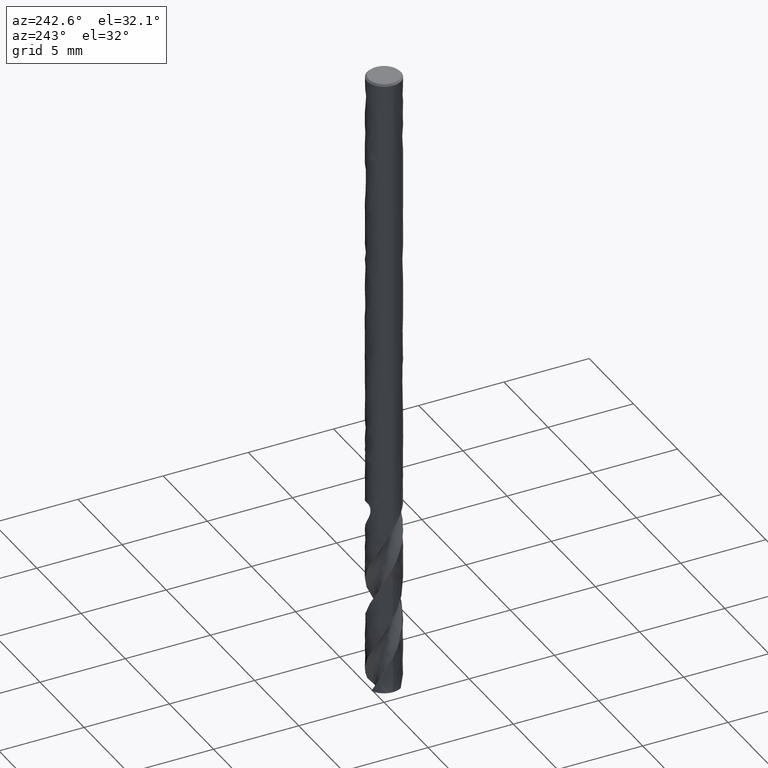
[diagram: clean part render]
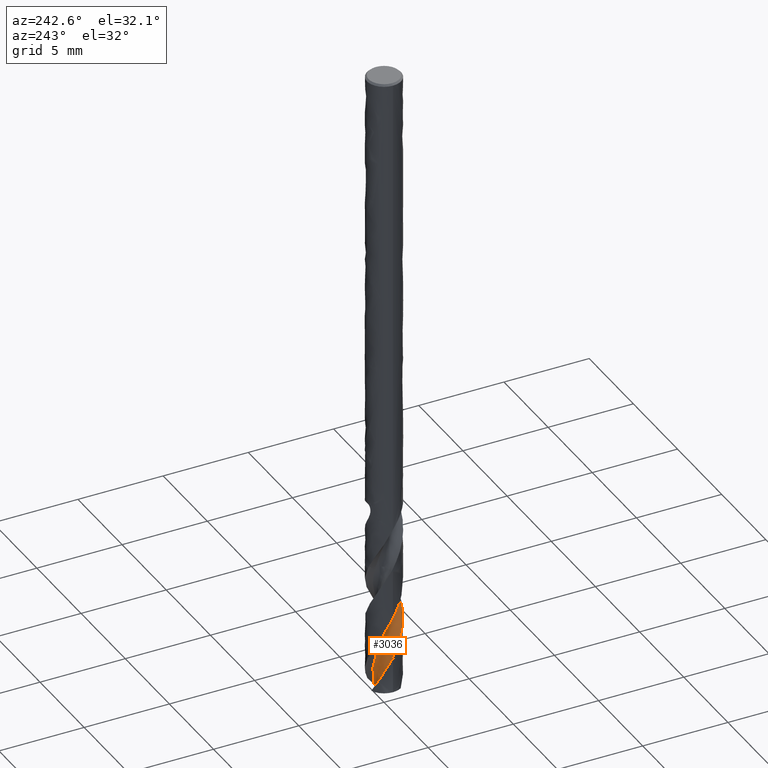
[diagram: same view with one face highlighted and labeled with its STEP entity id]
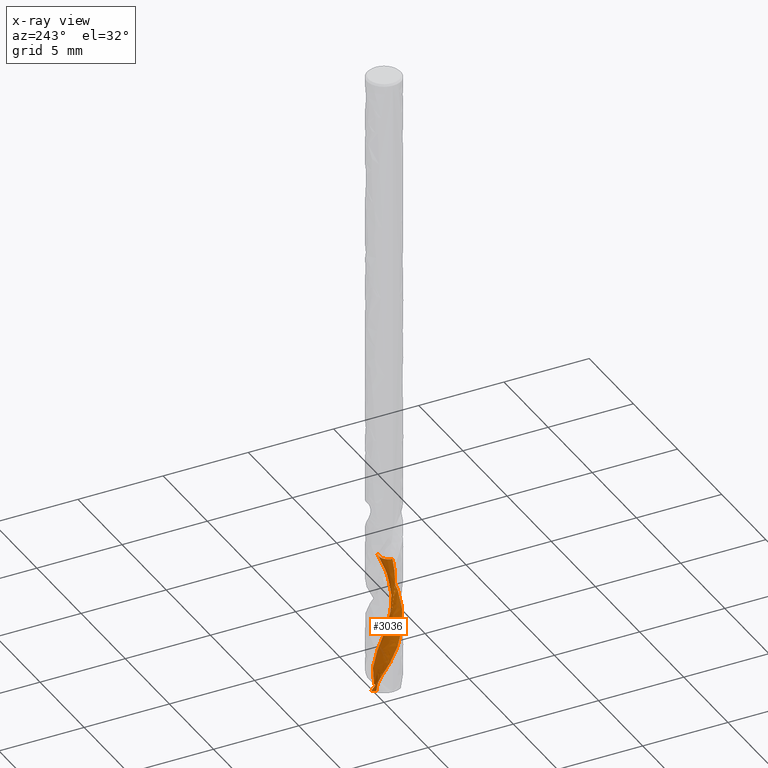
[diagram: x-ray of the same camera — body ghosted, the highlighted face saturated]
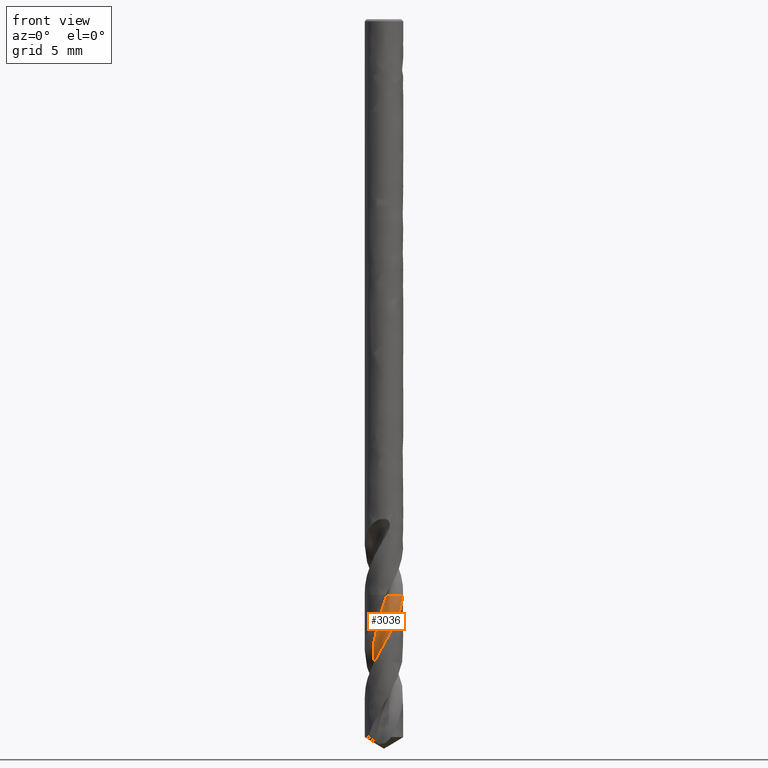
[diagram: same view with one face highlighted and labeled with its STEP entity id]
A machine part, auxiliary view. The second image highlights one B-rep face of the part: STEP entity #3036.
The next image is the same camera in x-ray: the body ghosted, the highlighted face saturated — about 0% of this face is hidden behind the body in this view.
A second angle (front view) of the same face is appended — the face is thin or edge-on in the first view.
In plain terms, the highlighted face is a freeform B-spline surface patch.
Its self-contained STEP definition (entity closure, byte-faithful):
#1668 = VERTEX_POINT('', #1669);
#1669 = CARTESIAN_POINT('', (0.135998718460345, -0.575146931831075, -30.));
#1675 = EDGE_CURVE('', #1668, #1676, #1678, .T.);
#1676 = VERTEX_POINT('', #1677);
#1677 = CARTESIAN_POINT('', (0.987539177526254, -0.109805153630184, -30.));
#1678 = B_SPLINE_CURVE_WITH_KNOTS('', 3, (#1679, #1680, #1681, #1682, #1683, #1684, #1685, #1686, #1687, #1688, #1689, #1690, #1691, #1692, #1693, #1694, #1695, #1696, #1697, #1698, #1699, #1700, #1701, #1702, #1703, #1704, #1705, #1706, #1707, #1708, #1709, #1710, #1711, #1712, #1713, #1714, #1715, #1716, #1717, #1718, #1719, #1720, #1721, #1722, #1723, #1724), .UNSPECIFIED., .F., .U., (4, 3, 3, 3, 3, 3, 3, 3, 3, 3, 3, 3, 3, 3, 3, 4), (0., 0.0883804650688275, 0.176503198818123, 0.264378113281307, 0.35201191791785, 0.439408462193498, 0.526568933330127, 0.565361066972095, 0.576896466371133, 0.66525077227098, 0.75334848854044, 0.841199188792323, 0.928809285519201, 1.01618235689132, 1.10331933151318, 1.13618845493787), .UNSPECIFIED.);
#1679 = CARTESIAN_POINT('', (0.135998718460344, -0.575146931831076, -30.));
#1680 = CARTESIAN_POINT('', (0.139254349698433, -0.545867218731092, -30.));
#1681 = CARTESIAN_POINT('', (0.144715616505441, -0.516750603756434, -30.));
#1682 = CARTESIAN_POINT('', (0.152291705077035, -0.488281258559693, -30.));
#1683 = CARTESIAN_POINT('', (0.159845700584251, -0.459894934445701, -30.));
#1684 = CARTESIAN_POINT('', (0.169543820194594, -0.431995440178764, -30.));
#1685 = CARTESIAN_POINT('', (0.181225732032189, -0.405044017569812, -30.));
#1686 = CARTESIAN_POINT('', (0.192874791926491, -0.378168387914919, -30.));
#1687 = CARTESIAN_POINT('', (0.206560363299047, -0.352088000098238, -30.));
#1688 = CARTESIAN_POINT('', (0.222057458203465, -0.327231610270038, -30.));
#1689 = CARTESIAN_POINT('', (0.237512032419371, -0.302443421018521, -30.));
#1690 = CARTESIAN_POINT('', (0.25485248765614, -0.27873721118665, -30.));
#1691 = CARTESIAN_POINT('', (0.273795306271487, -0.256500578944559, -30.));
#1692 = CARTESIAN_POINT('', (0.292686838970405, -0.234324150312395, -30.));
#1693 = CARTESIAN_POINT('', (0.313274561352267, -0.213488941809144, -30.));
#1694 = CARTESIAN_POINT('', (0.335223675555826, -0.194333775919212, -30.));
#1695 = CARTESIAN_POINT('', (0.357113501416446, -0.175230351435963, -30.));
#1696 = CARTESIAN_POINT('', (0.380475507963778, -0.157694725951723, -30.));
#1697 = CARTESIAN_POINT('', (0.404931823254602, -0.142010531819053, -30.));
#1698 = CARTESIAN_POINT('', (0.415816489649585, -0.13503003542055, -30.));
#1699 = CARTESIAN_POINT('', (0.426935816739858, -0.128402612571464, -30.));
#1700 = CARTESIAN_POINT('', (0.438254063170917, -0.122149566095912, -30.));
#1701 = CARTESIAN_POINT('', (0.441619706687306, -0.120290132706091, -30.));
#1702 = CARTESIAN_POINT('', (0.445003617776127, -0.118463387354692, -30.));
#1703 = CARTESIAN_POINT('', (0.448404833922169, -0.116669849638752, -30.));
#1704 = CARTESIAN_POINT('', (0.474456128845162, -0.102932416324544, -30.));
#1705 = CARTESIAN_POINT('', (0.501609875649799, -0.0911107608115625, -30.));
#1706 = CARTESIAN_POINT('', (0.529414808785796, -0.0814013460748307, -30.));
#1707 = CARTESIAN_POINT('', (0.557138993649892, -0.0717201284374162, -30.));
#1708 = CARTESIAN_POINT('', (0.585663475437383, -0.064085438363584, -30.));
#1709 = CARTESIAN_POINT('', (0.614516946489502, -0.0586234232074212, -30.));
#1710 = CARTESIAN_POINT('', (0.643289515677027, -0.053176722923073, -30.));
#1711 = CARTESIAN_POINT('', (0.672547019340507, -0.0498605926607932, -30.));
#1712 = CARTESIAN_POINT('', (0.701808734156998, -0.0487295189952856, -30.));
#1713 = CARTESIAN_POINT('', (0.730990307646074, -0.0476015430889327, -30.));
#1714 = CARTESIAN_POINT('', (0.760335232974311, -0.0486404539355623, -30.));
#1715 = CARTESIAN_POINT('', (0.789363977088427, -0.0518292744229569, -30.));
#1716 = CARTESIAN_POINT('', (0.818314185181821, -0.0550094676934491, -30.));
#1717 = CARTESIAN_POINT('', (0.847106979487776, -0.0603451423137144, -30.));
#1718 = CARTESIAN_POINT('', (0.875274381596411, -0.0677495758733493, -30.));
#1719 = CARTESIAN_POINT('', (0.903365670641873, -0.0751340014067878, -30.));
#1720 = CARTESIAN_POINT('', (0.93098653181853, -0.0846158042685134, -30.));
#1721 = CARTESIAN_POINT('', (0.957690447628035, -0.0960417020946588, -30.));
#1722 = CARTESIAN_POINT('', (0.967763488475208, -0.100351689301757, -30.));
#1723 = CARTESIAN_POINT('', (0.977720726319764, -0.104943039116932, -30.));
#1724 = CARTESIAN_POINT('', (0.987539177526253, -0.109805153630183, -30.));
#2870 = EDGE_CURVE('', #2871, #1676, #2873, .T.);
#2871 = VERTEX_POINT('', #2872);
#2872 = CARTESIAN_POINT('', (-0.391746614955515, 0.920073143652666, -37.3458270186984));
#2873 = B_SPLINE_CURVE_WITH_KNOTS('', 3, (#2874, #2875, #2876, #2877, #2878, #2879, #2880, #2881, #2882, #2883, #2884, #2885, #2886, #2887, #2888, #2889, #2890, #2891, #2892, #2893, #2894, #2895, #2896, #2897, #2898, #2899, #2900, #2901, #2902, #2903, #2904, #2905, #2906, #2907, #2908, #2909, #2910, #2911, #2912, #2913, #2914, #2915, #2916, #2917), .UNSPECIFIED., .F., .U., (4, 1, 1, 1, 1, 1, 1, 1, 1, 1, 1, 1, 1, 1, 1, 1, 1, 1, 1, 1, 1, 1, 1, 1, 1, 1, 1, 1, 1, 1, 1, 1, 1, 1, 1, 1, 1, 1, 1, 1, 1, 4), (0.704172981301635, 0.741538461538462, 0.926923076923077, 1.11230769230769, 1.29769230769231, 1.48307692307692, 1.66846153846154, 1.85384615384615, 2.03923076923077, 2.22461538461538, 2.41, 2.59538461538462, 2.78076923076923, 2.96615384615385, 3.15153846153846, 3.33692307692308, 3.52230769230769, 3.70769230769231, 3.89307692307692, 4.07846153846154, 4.26384615384615, 4.44923076923077, 4.63461538461539, 4.82, 5.00538461538462, 5.19076923076923, 5.37615384615385, 5.56153846153846, 5.74692307692308, 5.93230769230769, 6.11769230769231, 6.30307692307692, 6.48846153846154, 6.67384615384615, 6.85923076923077, 7.04461538461539, 7.23, 7.41538461538461, 7.60076923076923, 7.78615384615385, 7.97153846153846, 8.05), .UNSPECIFIED.);
#2874 = CARTESIAN_POINT('', (-0.391746614955515, 0.920073143652666, -37.3458270186984));
#2875 = CARTESIAN_POINT('', (-0.398233777784543, 0.917134684708216, -37.3333718586194));
#2876 = CARTESIAN_POINT('', (-0.436711460560281, 0.899212653154365, -37.2591218267456));
#2877 = CARTESIAN_POINT('', (-0.504991460609736, 0.861997952328158, -37.1230769230769));
#2878 = CARTESIAN_POINT('', (-0.592009801918604, 0.801958142060172, -36.9376923076923));
#2879 = CARTESIAN_POINT('', (-0.672084571697255, 0.733285192718364, -36.7523076923077));
#2880 = CARTESIAN_POINT('', (-0.744375408918372, 0.656763160572846, -36.5669230769231));
#2881 = CARTESIAN_POINT('', (-0.808128558124909, 0.573256117091408, -36.3815384615385));
#2882 = CARTESIAN_POINT('', (-0.862684316426238, 0.483698833140616, -36.1961538461538));
#2883 = CARTESIAN_POINT('', (-0.907483472532038, 0.389086724373042, -36.0107692307692));
#2884 = CARTESIAN_POINT('', (-0.94207269936656, 0.290465249164279, -35.8253846153846));
#2885 = CARTESIAN_POINT('', (-0.966108847743749, 0.188918842948014, -35.64));
#2886 = CARTESIAN_POINT('', (-0.9793621058836, 0.0855595065417635, -35.4546153846154));
#2887 = CARTESIAN_POINT('', (-0.981717998790511, -0.0184848393660146, -35.2692307692308));
#2888 = CARTESIAN_POINT('', (-0.973178213134883, -0.122082117658163, -35.0838461538462));
#2889 = CARTESIAN_POINT('', (-0.95386024435929, -0.224107860308487, -34.8984615384615));
#2890 = CARTESIAN_POINT('', (-0.923995873930094, -0.323456860505063, -34.7130769230769));
#2891 = CARTESIAN_POINT('', (-0.883928495676575, -0.419054597519378, -34.5276923076923));
#2892 = CARTESIAN_POINT('', (-0.83410932096386, -0.509868323047304, -34.3423076923077));
#2893 = CARTESIAN_POINT('', (-0.77509250292814, -0.594917701337449, -34.1569230769231));
#2894 = CARTESIAN_POINT('', (-0.707529230079752, -0.673284899963766, -33.9715384615385));
#2895 = CARTESIAN_POINT('', (-0.632160849167405, -0.744124033553673, -33.7861538461538));
#2896 = CARTESIAN_POINT('', (-0.549811086216401, -0.806669869099122, -33.6007692307692));
#2897 = CARTESIAN_POINT('', (-0.461377443031276, -0.86024570859963, -33.4153846153846));
#2898 = CARTESIAN_POINT('', (-0.367821854119768, -0.904270372650943, -33.23));
#2899 = CARTESIAN_POINT('', (-0.270160695887819, -0.938264217132639, -33.0446153846154));
#2900 = CARTESIAN_POINT('', (-0.169454246017161, -0.961854124289694, -32.8592307692308));
#2901 = CARTESIAN_POINT('', (-0.0667956961176843, -0.974777419169391, -32.6738461538462));
#2902 = CARTESIAN_POINT('', (0.0367001749973833, -0.976884672484491, -32.4884615384615));
#2903 = CARTESIAN_POINT('', (0.139908556771058, -0.968141361441302, -32.3030769230769));
#2904 = CARTESIAN_POINT('', (0.241706278150834, -0.948628370809628, -32.1176923076923));
#2905 = CARTESIAN_POINT('', (0.340983480387821, -0.918541327430216, -31.9323076923077));
#2906 = CARTESIAN_POINT('', (0.436655176883931, -0.878188772362394, -31.7469230769231));
#2907 = CARTESIAN_POINT('', (0.527672586350567, -0.827989185878094, -31.5615384615385));
#2908 = CARTESIAN_POINT('', (0.613034127341724, -0.768466891410858, -31.3761538461538));
#2909 = CARTESIAN_POINT('', (0.69179596503272, -0.700246875292267, -31.1907692307692));
#2910 = CARTESIAN_POINT('', (0.76308200496986, -0.624048569500922, -31.0053846153846));
#2911 = CARTESIAN_POINT('', (0.826093233182311, -0.540678654844852, -30.82));
#2912 = CARTESIAN_POINT('', (0.880116308269156, -0.451022951065926, -30.6346153846154));
#2913 = CARTESIAN_POINT('', (0.924531315904378, -0.356037471351831, -30.4492307692308));
#2914 = CARTESIAN_POINT('', (0.958818610436685, -0.256738719851781, -30.2638461538462));
#2915 = CARTESIAN_POINT('', (0.977999368252788, -0.17390815485913, -30.1141025641026));
#2916 = CARTESIAN_POINT('', (0.985603892461636, -0.124536646695686, -30.0261538461538));
#2917 = CARTESIAN_POINT('', (0.987539177526254, -0.109805153630184, -30.));
#3036 = ADVANCED_FACE('', (#3037), #3182, .T.);
#3037 = FACE_OUTER_BOUND('', #3038, .T.);
#3038 = EDGE_LOOP('', (#3039, #3040, #3090, #3174, #3181));
#3039 = ORIENTED_EDGE('', *, *, #1675, .F.);
#3040 = ORIENTED_EDGE('', *, *, #3041, .F.);
#3041 = EDGE_CURVE('', #3042, #1668, #3044, .T.);
#3042 = VERTEX_POINT('', #3043);
#3043 = CARTESIAN_POINT('', (0.500616358629446, 0.325578410920506, -37.6411810298685));
#3044 = (
   BOUNDED_CURVE ()
   B_SPLINE_CURVE (3, (#3045, #3046, #3047, #3048, #3049, #3050, #3051, #3052, #3053, #3054, #3055, #3056, #3057, #3058, #3059, #3060, #3061, #3062, #3063, #3064, #3065, #3066, #3067, #3068, #3069, #3070, #3071, #3072, #3073, #3074, #3075, #3076, #3077, #3078, #3079, #3080, #3081, #3082, #3083, #3084, #3085, #3086, #3087, #3088, #3089), .UNSPECIFIED., .F., .U.)
   B_SPLINE_CURVE_WITH_KNOTS ((4, 1, 1, 1, 1, 1, 1, 1, 1, 1, 1, 1, 1, 1, 1, 1, 1, 1, 1, 1, 1, 1, 1, 1, 1, 1, 1, 1, 1, 1, 1, 1, 1, 1, 1, 1, 1, 1, 1, 1, 1, 1, 4), (0.408818970131542, 0.556153846153846, 0.741538461538462, 0.926923076923077, 1.11230769230769, 1.29769230769231, 1.48307692307692, 1.66846153846154, 1.85384615384615, 2.03923076923077, 2.22461538461538, 2.41, 2.59538461538462, 2.78076923076923, 2.96615384615385, 3.15153846153846, 3.33692307692308, 3.52230769230769, 3.70769230769231, 3.89307692307692, 4.07846153846154, 4.26384615384615, 4.44923076923077, 4.63461538461539, 4.82, 5.00538461538462, 5.19076923076923, 5.37615384615385, 5.56153846153846, 5.74692307692308, 5.93230769230769, 6.11769230769231, 6.30307692307692, 6.48846153846154, 6.67384615384615, 6.85923076923077, 7.04461538461539, 7.23, 7.41538461538461, 7.60076923076923, 7.78615384615385, 7.97153846153846, 8.05), .UNSPECIFIED.)
   CURVE ()
   GEOMETRIC_REPRESENTATION_ITEM ()
   RATIONAL_B_SPLINE_CURVE ((1., 1., 1., 1., 1., 1., 1., 1., 1., 1., 1., 1., 1., 1., 1., 1., 1., 1., 1., 1., 1., 1., 1., 1., 1., 1., 1., 1., 1., 1., 1., 1., 1., 1., 1., 1., 1., 1., 1., 1., 1., 1., 1., 1., 1.))
   REPRESENTATION_ITEM ('')
);
#3045 = CARTESIAN_POINT('', (0.500616358629446, 0.325578410920506, -37.6411810298685));
#3046 = CARTESIAN_POINT('', (0.491132925059949, 0.339409429150648, -37.5920694045277));
#3047 = CARTESIAN_POINT('', (0.468435837758654, 0.369717381397372, -37.481162907392));
#3048 = CARTESIAN_POINT('', (0.428879157662162, 0.41330126600467, -37.3084615384615));
#3049 = CARTESIAN_POINT('', (0.38186367919126, 0.455278652426008, -37.1230769230769));
#3050 = CARTESIAN_POINT('', (0.330827748735627, 0.492015409209991, -36.9376923076923));
#3051 = CARTESIAN_POINT('', (0.276344541339714, 0.523135985277164, -36.7523076923077));
#3052 = CARTESIAN_POINT('', (0.219021330897557, 0.548326450180634, -36.5669230769231));
#3053 = CARTESIAN_POINT('', (0.159492891984802, 0.567337390011567, -36.3815384615385));
#3054 = CARTESIAN_POINT('', (0.0984147920653913, 0.579986215793679, -36.1961538461538));
#3055 = CARTESIAN_POINT('', (0.0364564714322531, 0.586158759488736, -36.0107692307692));
#3056 = CARTESIAN_POINT('', (-0.0257057742310817, 0.585810174343285, -35.8253846153846));
#3057 = CARTESIAN_POINT('', (-0.0873958511951062, 0.57896512692662, -35.64));
#3058 = CARTESIAN_POINT('', (-0.147944892019885, 0.56571728464966, -35.4546153846154));
#3059 = CARTESIAN_POINT('', (-0.206698178851447, 0.546228106646212, -35.2692307692308));
#3060 = CARTESIAN_POINT('', (-0.263021897878858, 0.520724953155169, -35.0838461538462));
#3061 = CARTESIAN_POINT('', (-0.3163096593999, 0.489498534737449, -34.8984615384615));
#3062 = CARTESIAN_POINT('', (-0.365988720395053, 0.452899728859405, -34.7130769230769));
#3063 = CARTESIAN_POINT('', (-0.41152584961892, 0.411335797225011, -34.5276923076923));
#3064 = CARTESIAN_POINT('', (-0.452432778826426, 0.365266042774442, -34.3423076923077));
#3065 = CARTESIAN_POINT('', (-0.488271187858329, 0.315196950420604, -34.1569230769231));
#3066 = CARTESIAN_POINT('', (-0.518657175869871, 0.261676860331692, -33.9715384615385));
#3067 = CARTESIAN_POINT('', (-0.543265175959319, 0.205290226847722, -33.7861538461539));
#3068 = CARTESIAN_POINT('', (-0.561831275795157, 0.146651519908171, -33.6007692307692));
#3069 = CARTESIAN_POINT('', (-0.574155912505467, 0.086398829136412, -33.4153846153846));
#3070 = CARTESIAN_POINT('', (-0.580105916031869, 0.02518723344816, -33.23));
#3071 = CARTESIAN_POINT('', (-0.57961588131253, -0.0363179987956205, -33.0446153846154));
#3072 = CARTESIAN_POINT('', (-0.572688855992027, -0.0974483125036501, -32.8592307692308));
#3073 = CARTESIAN_POINT('', (-0.559396336806749, -0.157538803880623, -32.6738461538462));
#3074 = CARTESIAN_POINT('', (-0.539877574308656, -0.215935125846323, -32.4884615384615));
#3075 = CARTESIAN_POINT('', (-0.514338192112838, -0.272000293177167, -32.3030769230769));
#3076 = CARTESIAN_POINT('', (-0.483048133330232, -0.325121320556986, -32.1176923076923));
#3077 = CARTESIAN_POINT('', (-0.446338953221469, -0.37471562818407, -31.9323076923077));
#3078 = CARTESIAN_POINT('', (-0.404600483326638, -0.420237151634415, -31.7469230769231));
#3079 = CARTESIAN_POINT('', (-0.358276898336257, -0.461182095311042, -31.5615384615385));
#3080 = CARTESIAN_POINT('', (-0.307862222716028, -0.497094271997759, -31.3761538461538));
#3081 = CARTESIAN_POINT('', (-0.253895319543409, -0.527569974753629, -31.1907692307692));
#3082 = CARTESIAN_POINT('', (-0.196954409064854, -0.552262331621843, -31.0053846153846));
#3083 = CARTESIAN_POINT('', (-0.1376511692607, -0.570885098279597, -30.82));
#3084 = CARTESIAN_POINT('', (-0.0766244745397302, -0.583215849054275, -30.6346153846154));
#3085 = CARTESIAN_POINT('', (-0.0145338338796656, -0.589098531636115, -30.4492307692308));
#3086 = CARTESIAN_POINT('', (0.0479474124949134, -0.588445359013175, -30.2638461538462));
#3087 = CARTESIAN_POINT('', (0.0981824328597528, -0.582623654983773, -30.1141025641026));
#3088 = CARTESIAN_POINT('', (0.127359579452582, -0.577009149491511, -30.0261538461538));
#3089 = CARTESIAN_POINT('', (0.135998718460345, -0.575146931831075, -30.));
#3090 = ORIENTED_EDGE('', *, *, #3091, .T.);
#3091 = EDGE_CURVE('', #3042, #3092, #3094, .T.);
#3092 = VERTEX_POINT('', #3093);
#3093 = CARTESIAN_POINT('', (-0.363766343266472, 0.931490229420869, -37.3991393809724));
#3094 = B_SPLINE_CURVE_WITH_KNOTS('', 3, (#3095, #3096, #3097, #3098, #3099, #3100, #3101, #3102, #3103, #3104, #3105, #3106, #3107, #3108, #3109, #3110, #3111, #3112, #3113, #3114, #3115, #3116, #3117, #3118, #3119, #3120, #3121, #3122, #3123, #3124, #3125, #3126, #3127, #3128, #3129, #3130, #3131, #3132, #3133, #3134, #3135, #3136, #3137, #3138, #3139, #3140, #3141, #3142, #3143, #3144, #3145, #3146, #3147, #3148, #3149, #3150, #3151, #3152, #3153, #3154, #3155, #3156, #3157, #3158, #3159, #3160, #3161, #3162, #3163, #3164, #3165, #3166, #3167, #3168, #3169, #3170, #3171, #3172, #3173), .UNSPECIFIED., .F., .U., (4, 3, 3, 3, 3, 3, 3, 3, 3, 3, 3, 3, 3, 3, 3, 3, 3, 3, 3, 3, 3, 3, 3, 3, 3, 3, 4), (0., 0.058423714785157, 0.116781428048705, 0.175008094174077, 0.213762279710079, 0.252446921079815, 0.291073312841138, 0.329675610552039, 0.368303577894409, 0.406999788589676, 0.445778718983499, 0.484626586084019, 0.523516726431825, 0.562423615781968, 0.57972180338542, 0.597070915581002, 0.614443728262421, 0.673633544766157, 0.732549543932874, 0.791262311308626, 0.849820551342957, 0.908257000696043, 0.966593427499919, 1.02484411251214, 1.11193378359335, 1.19879204906969, 1.27422847798653), .UNSPECIFIED.);
#3095 = CARTESIAN_POINT('', (0.500616358629446, 0.325578410920506, -37.6411810298685));
#3096 = CARTESIAN_POINT('', (0.485355481294435, 0.318688025142559, -37.6511252314758));
#3097 = CARTESIAN_POINT('', (0.46955545676211, 0.312795376920113, -37.6610078387314));
#3098 = CARTESIAN_POINT('', (0.453335588066947, 0.30803304366014, -37.6706771189654));
#3099 = CARTESIAN_POINT('', (0.437134043027138, 0.303276090428512, -37.6803354757719));
#3100 = CARTESIAN_POINT('', (0.420448876006566, 0.299629105314264, -37.689820684765));
#3101 = CARTESIAN_POINT('', (0.403423614035715, 0.297217533373797, -37.698916139538));
#3102 = CARTESIAN_POINT('', (0.386436583718115, 0.294811376820322, -37.7079911697047));
#3103 = CARTESIAN_POINT('', (0.369028810499601, 0.293626096847965, -37.7167223642566));
#3104 = CARTESIAN_POINT('', (0.351383167244335, 0.293762163627547, -37.7248043021948));
#3105 = CARTESIAN_POINT('', (0.339638676650554, 0.293852726209472, -37.7301834341835));
#3106 = CARTESIAN_POINT('', (0.327752324263197, 0.294527962591539, -37.7352900891181));
#3107 = CARTESIAN_POINT('', (0.315795202682149, 0.295801912141185, -37.7400103240573));
#3108 = CARTESIAN_POINT('', (0.303859538087999, 0.297073575595586, -37.7447220885616));
#3109 = CARTESIAN_POINT('', (0.291816594070242, 0.298946649087114, -37.7490621199445));
#3110 = CARTESIAN_POINT('', (0.279757223766927, 0.301410704580433, -37.7529063312294));
#3111 = CARTESIAN_POINT('', (0.267716011925807, 0.303871049808838, -37.7567447540723));
#3112 = CARTESIAN_POINT('', (0.255616110205901, 0.306930104276069, -37.7601003306839));
#3113 = CARTESIAN_POINT('', (0.243569452244596, 0.310540875379042, -37.7628603914028));
#3114 = CARTESIAN_POINT('', (0.231530308647721, 0.31414939418515, -37.7656187304739));
#3115 = CARTESIAN_POINT('', (0.219498540503123, 0.318322854593095, -37.7677907732797));
#3116 = CARTESIAN_POINT('', (0.207596985899733, 0.322973121384368, -37.7693069651355));
#3117 = CARTESIAN_POINT('', (0.195687517038936, 0.327626480495059, -37.7708241652238));
#3118 = CARTESIAN_POINT('', (0.183862975018583, 0.332774139294352, -37.771689885329));
#3119 = CARTESIAN_POINT('', (0.1722346873902, 0.338299473868637, -37.7719013098801));
#3120 = CARTESIAN_POINT('', (0.160585856269864, 0.343834569954676, -37.7721131079513));
#3121 = CARTESIAN_POINT('', (0.149093177140554, 0.349766490922985, -37.7716705532169));
#3122 = CARTESIAN_POINT('', (0.13783529047547, 0.355976322500096, -37.7706335415512));
#3123 = CARTESIAN_POINT('', (0.126553338172573, 0.362199428643033, -37.7695943130976));
#3124 = CARTESIAN_POINT('', (0.115474372267489, 0.368718373074991, -37.7679575139085));
#3125 = CARTESIAN_POINT('', (0.104638949451889, 0.375434501913723, -37.7658181870427));
#3126 = CARTESIAN_POINT('', (0.0937842646722019, 0.382162569911148, -37.7636750571286));
#3127 = CARTESIAN_POINT('', (0.0831502513394439, 0.38910252457264, -37.7610249075596));
#3128 = CARTESIAN_POINT('', (0.0727484840309301, 0.396183968840853, -37.7579686892413));
#3129 = CARTESIAN_POINT('', (0.0623353977874407, 0.403273118954124, -37.7549091452251));
#3130 = CARTESIAN_POINT('', (0.0521392023587543, 0.410514677560567, -37.7514390408312));
#3131 = CARTESIAN_POINT('', (0.0421553756156384, 0.417863194924838, -37.7476480356689));
#3132 = CARTESIAN_POINT('', (0.0321672490902138, 0.425214877110151, -37.7438553978163));
#3133 = CARTESIAN_POINT('', (0.0223814887635138, 0.432681177113791, -37.7397380675882));
#3134 = CARTESIAN_POINT('', (0.0127871895192411, 0.440234538986195, -37.7353688398809));
#3135 = CARTESIAN_POINT('', (0.00852151855394013, 0.443592799512492, -37.7334262605119));
#3136 = CARTESIAN_POINT('', (0.00429268683025949, 0.446969208549584, -37.731433240573));
#3137 = CARTESIAN_POINT('', (9.96414628820556E-5, 0.450362131871932, -37.7293951240338));
#3138 = CARTESIAN_POINT('', (-0.00410574792168452, 0.453765043711013, -37.7273510074294));
#3139 = CARTESIAN_POINT('', (-0.00827560057491101, 0.457184942447973, -37.7252613030777));
#3140 = CARTESIAN_POINT('', (-0.0124109575365662, 0.46062054197059, -37.723130810113));
#3141 = CARTESIAN_POINT('', (-0.0165519637768702, 0.464060834838718, -37.7209974066986));
#3142 = CARTESIAN_POINT('', (-0.0206587682617569, 0.467517196483137, -37.7188229008443));
#3143 = CARTESIAN_POINT('', (-0.0247323599021563, 0.470988627008208, -37.7166115711343));
#3144 = CARTESIAN_POINT('', (-0.0386112375558748, 0.482815919430709, -37.7090774888782));
#3145 = CARTESIAN_POINT('', (-0.0521129881845719, 0.494822963532753, -37.7011158458929));
#3146 = CARTESIAN_POINT('', (-0.0652692186689678, 0.506987546885585, -37.692857093099));
#3147 = CARTESIAN_POINT('', (-0.0783645872651329, 0.519095855797706, -37.6846365460276));
#3148 = CARTESIAN_POINT('', (-0.0911256974913785, 0.53136846133758, -37.6761153216422));
#3149 = CARTESIAN_POINT('', (-0.103570804456649, 0.543797785258435, -37.6673798515903));
#3150 = CARTESIAN_POINT('', (-0.115972981803257, 0.556184234004523, -37.6586745146982));
#3151 = CARTESIAN_POINT('', (-0.128066803501308, 0.568732246664267, -37.6497516790844));
#3152 = CARTESIAN_POINT('', (-0.139858860797794, 0.581440524992683, -37.6406704868431));
#3153 = CARTESIAN_POINT('', (-0.151619882335869, 0.594115356141689, -37.6316131955786));
#3154 = CARTESIAN_POINT('', (-0.163085028035668, 0.606954523991316, -37.6223944825928));
#3155 = CARTESIAN_POINT('', (-0.174251317638677, 0.61995926491117, -37.6130564856216));
#3156 = CARTESIAN_POINT('', (-0.185394383353522, 0.632936958292451, -37.6037379100164));
#3157 = CARTESIAN_POINT('', (-0.196243622281908, 0.646084117176574, -37.5942970017128));
#3158 = CARTESIAN_POINT('', (-0.206788012041041, 0.659402719985841, -37.5847652151988));
#3159 = CARTESIAN_POINT('', (-0.217314353531409, 0.672698526054038, -37.5752497437346));
#3160 = CARTESIAN_POINT('', (-0.227540491384668, 0.686169845305162, -37.5656402058781));
#3161 = CARTESIAN_POINT('', (-0.23744825606118, 0.699818396771522, -37.5559613751974));
#3162 = CARTESIAN_POINT('', (-0.247341458490032, 0.713446887851596, -37.5462967702815));
#3163 = CARTESIAN_POINT('', (-0.256920824630186, 0.727257118228042, -37.536559402478));
#3164 = CARTESIAN_POINT('', (-0.266161407010911, 0.741249814694182, -37.526770025865));
#3165 = CARTESIAN_POINT('', (-0.279976854502512, 0.762170072241703, -37.5121340848604));
#3166 = CARTESIAN_POINT('', (-0.293047078416551, 0.783515008277459, -37.4973706171171));
#3167 = CARTESIAN_POINT('', (-0.305259498645871, 0.805279316412782, -37.4825413818749));
#3168 = CARTESIAN_POINT('', (-0.317439469303905, 0.826985794694968, -37.4677515493322));
#3169 = CARTESIAN_POINT('', (-0.328779717235214, 0.849133829743983, -37.452879461842));
#3170 = CARTESIAN_POINT('', (-0.339130714685962, 0.871702093715964, -37.4379867675139));
#3171 = CARTESIAN_POINT('', (-0.348120558993, 0.891302637562449, -37.4250524581433));
#3172 = CARTESIAN_POINT('', (-0.356373855820046, 0.911242220436731, -37.4120879036746));
#3173 = CARTESIAN_POINT('', (-0.363766343266472, 0.931490229420869, -37.3991393809724));
#3174 = ORIENTED_EDGE('', *, *, #3175, .F.);
#3175 = EDGE_CURVE('', #2871, #3092, #3176, .T.);
#3176 = CIRCLE('', #3177, 4.11211181493375);
#3177 = AXIS2_PLACEMENT_3D('', #3178, #3179, #3180);
#3178 = CARTESIAN_POINT('', (1.17207607397688, -2.88296334373632, -37.3747346322448));
#3179 = DIRECTION('', (-0.805897611136136, -0.327639674803314, -0.493134143879583));
#3180 = DIRECTION('', (-0.380296733013314, 0.924837810526867, 0.00702987050177155));
#3181 = ORIENTED_EDGE('', *, *, #2870, .T.);
#3182 = (
   BOUNDED_SURFACE ()
   B_SPLINE_SURFACE (3, 2, ((#3183, #3184, #3185, #3186, #3187), (#3188, #3189, #3190, #3191, #3192), (#3193, #3194, #3195, #3196, #3197), (#3198, #3199, #3200, #3201, #3202), (#3203, #3204, #3205, #3206, #3207), (#3208, #3209, #3210, #3211, #3212), (#3213, #3214, #3215, #3216, #3217), (#3218, #3219, #3220, #3221, #3222), (#3223, #3224, #3225, #3226, #3227), (#3228, #3229, #3230, #3231, #3232), (#3233, #3234, #3235, #3236, #3237), (#3238, #3239, #3240, #3241, #3242), (#3243, #3244, #3245, #3246, #3247), (#3248, #3249, #3250, #3251, #3252), (#3253, #3254, #3255, #3256, #3257), (#3258, #3259, #3260, #3261, #3262), (#3263, #3264, #3265, #3266, #3267), (#3268, #3269, #3270, #3271, #3272), (#3273, #3274, #3275, #3276, #3277), (#3278, #3279, #3280, #3281, #3282), (#3283, #3284, #3285, #3286, #3287), (#3288, #3289, #3290, #3291, #3292), (#3293, #3294, #3295, #3296, #3297), (#3298, #3299, #3300, #3301, #3302), (#3303, #3304, #3305, #3306, #3307), (#3308, #3309, #3310, #3311, #3312), (#3313, #3314, #3315, #3316, #3317), (#3318, #3319, #3320, #3321, #3322), (#3323, #3324, #3325, #3326, #3327), (#3328, #3329, #3330, #3331, #3332), (#3333, #3334, #3335, #3336, #3337), (#3338, #3339, #3340, #3341, #3342), (#3343, #3344, #3345, #3346, #3347), (#3348, #3349, #3350, #3351, #3352), (#3353, #3354, #3355, #3356, #3357), (#3358, #3359, #3360, #3361, #3362), (#3363, #3364, #3365, #3366, #3367), (#3368, #3369, #3370, #3371, #3372), (#3373, #3374, #3375, #3376, #3377), (#3378, #3379, #3380, #3381, #3382), (#3383, #3384, #3385, #3386, #3387), (#3388, #3389, #3390, #3391, #3392), (#3393, #3394, #3395, #3396, #3397), (#3398, #3399, #3400, #3401, #3402), (#3403, #3404, #3405, #3406, #3407), (#3408, #3409, #3410, #3411, #3412)), .UNSPECIFIED., .F., .F., .U.)
   B_SPLINE_SURFACE_WITH_KNOTS ((4, 1, 1, 1, 1, 1, 1, 1, 1, 1, 1, 1, 1, 1, 1, 1, 1, 1, 1, 1, 1, 1, 1, 1, 1, 1, 1, 1, 1, 1, 1, 1, 1, 1, 1, 1, 1, 1, 1, 1, 1, 1, 1, 4), (3, 2, 3), (0.277886892048719, 0.370769230769231, 0.556153846153846, 0.741538461538462, 0.926923076923077, 1.11230769230769, 1.29769230769231, 1.48307692307692, 1.66846153846154, 1.85384615384615, 2.03923076923077, 2.22461538461538, 2.41, 2.59538461538462, 2.78076923076923, 2.96615384615385, 3.15153846153846, 3.33692307692308, 3.52230769230769, 3.70769230769231, 3.89307692307692, 4.07846153846154, 4.26384615384615, 4.44923076923077, 4.63461538461539, 4.82, 5.00538461538462, 5.19076923076923, 5.37615384615385, 5.56153846153846, 5.74692307692308, 5.93230769230769, 6.11769230769231, 6.30307692307692, 6.48846153846154, 6.67384615384615, 6.85923076923077, 7.04461538461539, 7.23, 7.41538461538461, 7.60076923076923, 7.78615384615385, 7.97153846153846, 8.05000000000147), (0., 0.5, 1.), .UNSPECIFIED.)
   GEOMETRIC_REPRESENTATION_ITEM ()
   RATIONAL_B_SPLINE_SURFACE (((1., 0.887010833178222, 1., 0.887010833178222, 1.), (1., 0.887010833178222, 1., 0.887010833178222, 1.), (1., 0.887010833178222, 1., 0.887010833178222, 1.), (1., 0.887010833178222, 1., 0.887010833178222, 1.), (1., 0.887010833178222, 1., 0.887010833178222, 1.), (1., 0.887010833178222, 1., 0.887010833178222, 1.), (1., 0.887010833178222, 1., 0.887010833178222, 1.), (1., 0.887010833178221, 1., 0.887010833178221, 1.), (1., 0.887010833178222, 1., 0.887010833178222, 1.), (1., 0.887010833178222, 1., 0.887010833178222, 1.), (1., 0.887010833178222, 1., 0.887010833178222, 1.), (1., 0.887010833178221, 1., 0.887010833178221, 1.), (1., 0.887010833178222, 1., 0.887010833178222, 1.), (1., 0.887010833178222, 1., 0.887010833178222, 1.), (1., 0.887010833178222, 1., 0.887010833178222, 1.), (1., 0.887010833178222, 1., 0.887010833178222, 1.), (1., 0.887010833178222, 1., 0.887010833178222, 1.), (1., 0.887010833178222, 1., 0.887010833178222, 1.), (1., 0.887010833178222, 1., 0.887010833178222, 1.), (1., 0.887010833178222, 1., 0.887010833178222, 1.), (1., 0.887010833178222, 1., 0.887010833178222, 1.), (1., 0.887010833178222, 1., 0.887010833178222, 1.), (1., 0.887010833178222, 1., 0.887010833178222, 1.), (1., 0.887010833178221, 1., 0.887010833178221, 1.), (1., 0.887010833178222, 1., 0.887010833178222, 1.), (1., 0.887010833178222, 1., 0.887010833178222, 1.), (1., 0.887010833178222, 1., 0.887010833178222, 1.), (1., 0.887010833178222, 1., 0.887010833178222, 1.), (1., 0.887010833178222, 1., 0.887010833178222, 1.), (1., 0.887010833178222, 1., 0.887010833178222, 1.), (1., 0.887010833178222, 1., 0.887010833178222, 1.), (1., 0.887010833178222, 1., 0.887010833178222, 1.), (1., 0.887010833178222, 1., 0.887010833178222, 1.), (1., 0.887010833178222, 1., 0.887010833178222, 1.), (1., 0.887010833178222, 1., 0.887010833178222, 1.), (1., 0.887010833178222, 1., 0.887010833178222, 1.), (1., 0.887010833178222, 1., 0.887010833178222, 1.), (1., 0.887010833178222, 1., 0.887010833178222, 1.), (1., 0.887010833178221, 1., 0.887010833178221, 1.), (1., 0.887010833178222, 1., 0.887010833178222, 1.), (1., 0.887010833178222, 1., 0.887010833178222, 1.), (1., 0.887010833178222, 1., 0.887010833178222, 1.), (1., 0.887010833178222, 1., 0.887010833178222, 1.), (1., 0.887010833178222, 1., 0.887010833178222, 1.), (1., 0.887010833178222, 1., 0.887010833178222, 1.), (1., 0.887010833178222, 1., 0.887010833178222, 1.)))
   REPRESENTATION_ITEM ('')
   SURFACE ()
);
#3183 = CARTESIAN_POINT('', (-0.159108659028322, 0.993192541731389, -37.7721131079513));
#3184 = CARTESIAN_POINT('', (-0.218124598650006, 0.686686620986899, -37.7721131079513));
#3185 = CARTESIAN_POINT('', (-0.000899799421591394, 0.46253901965904, -37.7721131079513));
#3186 = CARTESIAN_POINT('', (0.216324999806823, 0.238391418331182, -37.7721131079513));
#3187 = CARTESIAN_POINT('', (0.524530991885518, 0.287765774303135, -37.7721131079513));
#3188 = CARTESIAN_POINT('', (-0.176615722243512, 0.989935116488649, -37.7411523283778));
#3189 = CARTESIAN_POINT('', (-0.23018080520598, 0.682520958803103, -37.7411523283778));
#3190 = CARTESIAN_POINT('', (-0.00908553889294712, 0.462317494542754, -37.7411523283778));
#3191 = CARTESIAN_POINT('', (0.212009727420086, 0.242114030282405, -37.7411523283778));
#3192 = CARTESIAN_POINT('', (0.519204880274383, 0.296921151362739, -37.7411523283778));
#3193 = CARTESIAN_POINT('', (-0.228773679969528, 0.978804998260013, -37.6483966770094));
#3194 = CARTESIAN_POINT('', (-0.265947997984829, 0.669100633707315, -37.6483966770094));
#3195 = CARTESIAN_POINT('', (-0.0335753474872604, 0.46101008936753, -37.6483966770094));
#3196 = CARTESIAN_POINT('', (0.198797303010308, 0.252919545027744, -37.6483966770094));
#3197 = CARTESIAN_POINT('', (0.502538574581295, 0.323912243858916, -37.6483966770094));
#3198 = CARTESIAN_POINT('', (-0.313867583986345, 0.953493038246533, -37.4938461538462));
#3199 = CARTESIAN_POINT('', (-0.323541691920464, 0.642138286108355, -37.4938461538462));
#3200 = CARTESIAN_POINT('', (-0.07404365056111, 0.455627971645069, -37.4938461538462));
#3201 = CARTESIAN_POINT('', (0.175454390798244, 0.269117657181785, -37.4938461538462));
#3202 = CARTESIAN_POINT('', (0.47134089361129, 0.366516566294835, -37.4938461538462));
#3203 = CARTESIAN_POINT('', (-0.411948199110898, 0.912709392545877, -37.3084615384615));
#3204 = CARTESIAN_POINT('', (-0.388693030374605, 0.602837511151149, -37.3084615384616));
#3205 = CARTESIAN_POINT('', (-0.121522228451933, 0.444151820705987, -37.3084615384615));
#3206 = CARTESIAN_POINT('', (0.145648573470739, 0.285466130260825, -37.3084615384616));
#3207 = CARTESIAN_POINT('', (0.428879157662162, 0.41330126600467, -37.3084615384615));
#3208 = CARTESIAN_POINT('', (-0.504991460609736, 0.861997952328158, -37.1230769230769));
#3209 = CARTESIAN_POINT('', (-0.449222239418604, 0.557038566429238, -37.1230769230769));
#3210 = CARTESIAN_POINT('', (-0.167426223885505, 0.427804520180653, -37.1230769230769));
#3211 = CARTESIAN_POINT('', (0.114369791647594, 0.298570473932068, -37.1230769230769));
#3212 = CARTESIAN_POINT('', (0.38186367919126, 0.455278652426008, -37.1230769230769));
#3213 = CARTESIAN_POINT('', (-0.592009801918604, 0.801958142060172, -36.9376923076923));
#3214 = CARTESIAN_POINT('', (-0.504493350843902, 0.505270897393695, -36.9376923076923));
#3215 = CARTESIAN_POINT('', (-0.211264013731372, 0.406787364693846, -36.9376923076923));
#3216 = CARTESIAN_POINT('', (0.0819653233811585, 0.308303831993997, -36.9376923076923));
#3217 = CARTESIAN_POINT('', (0.330827748735627, 0.492015409209991, -36.9376923076923));
#3218 = CARTESIAN_POINT('', (-0.672084571697255, 0.733285192718364, -36.7523076923077));
#3219 = CARTESIAN_POINT('', (-0.553929384152491, 0.448124504116982, -36.7523076923077));
#3220 = CARTESIAN_POINT('', (-0.252568391725497, 0.381350115982232, -36.7523076923077));
#3221 = CARTESIAN_POINT('', (0.0487926007014981, 0.314575727847483, -36.7523076923077));
#3222 = CARTESIAN_POINT('', (0.276344541339714, 0.523135985277164, -36.7523076923077));
#3223 = CARTESIAN_POINT('', (-0.744375408918372, 0.656763160572846, -36.5669230769231));
#3224 = CARTESIAN_POINT('', (-0.597018246880065, 0.386244000800669, -36.5669230769231));
#3225 = CARTESIAN_POINT('', (-0.290901328260611, 0.351788505698167, -36.5669230769231));
#3226 = CARTESIAN_POINT('', (0.0152155903588432, 0.317333010595665, -36.5669230769231));
#3227 = CARTESIAN_POINT('', (0.219021330897557, 0.548326450180634, -36.5669230769231));
#3228 = CARTESIAN_POINT('', (-0.808128558124908, 0.573256117091408, -36.3815384615385));
#3229 = CARTESIAN_POINT('', (-0.633317690030229, 0.320321492197262, -36.3815384615385));
#3230 = CARTESIAN_POINT('', (-0.32585838021954, 0.318440831384379, -36.3815384615385));
#3231 = CARTESIAN_POINT('', (-0.0183990704088513, 0.316560170571497, -36.3815384615385));
#3232 = CARTESIAN_POINT('', (0.159492891984802, 0.567337390011567, -36.3815384615385));
#3233 = CARTESIAN_POINT('', (-0.862684316426238, 0.483698833140616, -36.1961538461538));
#3234 = CARTESIAN_POINT('', (-0.662459594763046, 0.251089183947122, -36.1961538461538));
#3235 = CARTESIAN_POINT('', (-0.357072742783897, 0.281684260369447, -36.1961538461538));
#3236 = CARTESIAN_POINT('', (-0.0516858908047477, 0.312279336791773, -36.1961538461538));
#3237 = CARTESIAN_POINT('', (0.0984147920653913, 0.579986215793679, -36.1961538461538));
#3238 = CARTESIAN_POINT('', (-0.907483472532038, 0.389086724373042, -36.0107692307692));
#3239 = CARTESIAN_POINT('', (-0.684153466633024, 0.179311576522837, -36.0107692307692));
#3240 = CARTESIAN_POINT('', (-0.384218896516689, 0.241930725667153, -36.0107692307692));
#3241 = CARTESIAN_POINT('', (-0.0842843264003538, 0.304549874811468, -36.0107692307692));
#3242 = CARTESIAN_POINT('', (0.0364564714322531, 0.586158759488736, -36.0107692307692));
#3243 = CARTESIAN_POINT('', (-0.94207269936656, 0.290465249164279, -35.8253846153846));
#3244 = CARTESIAN_POINT('', (-0.698189130443853, 0.105777382423964, -35.8253846153846));
#3245 = CARTESIAN_POINT('', (-0.40701581850089, 0.199622498033308, -35.8253846153846));
#3246 = CARTESIAN_POINT('', (-0.115842506557927, 0.293467613642652, -35.8253846153846));
#3247 = CARTESIAN_POINT('', (-0.0257057742310817, 0.585810174343285, -35.8253846153846));
#3248 = CARTESIAN_POINT('', (-0.966108847743749, 0.188918842948014, -35.64));
#3249 = CARTESIAN_POINT('', (-0.70443859741458, 0.0312912315940782, -35.64));
#3250 = CARTESIAN_POINT('', (-0.425229727654722, 0.155227468489911, -35.64));
#3251 = CARTESIAN_POINT('', (-0.146020857894863, 0.279163705385743, -35.64));
#3252 = CARTESIAN_POINT('', (-0.0873958511951062, 0.57896512692662, -35.64));
#3253 = CARTESIAN_POINT('', (-0.9793621058836, 0.0855595065417636, -35.4546153846154));
#3254 = CARTESIAN_POINT('', (-0.702857092188454, -0.0433347478996714, -35.4546153846154));
#3255 = CARTESIAN_POINT('', (-0.438676339777189, 0.10923419219622, -35.4546153846154));
#3256 = CARTESIAN_POINT('', (-0.174495587365922, 0.26180313229211, -35.4546153846154));
#3257 = CARTESIAN_POINT('', (-0.147944892019885, 0.56571728464966, -35.4546153846154));
#3258 = CARTESIAN_POINT('', (-0.981717998790511, -0.0184848393660145, -35.2692307692308));
#3259 = CARTESIAN_POINT('', (-0.693483233186127, -0.11728939170592, -35.2692307692308));
#3260 = CARTESIAN_POINT('', (-0.447222612463993, 0.0621467427476865, -35.2692307692308));
#3261 = CARTESIAN_POINT('', (-0.200961991741859, 0.241582877201293, -35.2692307692308));
#3262 = CARTESIAN_POINT('', (-0.206698178851447, 0.546228106646212, -35.2692307692308));
#3263 = CARTESIAN_POINT('', (-0.973178213134883, -0.122082117658163, -35.0838461538462));
#3264 = CARTESIAN_POINT('', (-0.676438368433573, -0.189770919913721, -35.0838461538462));
#3265 = CARTESIAN_POINT('', (-0.450787965043318, 0.0144794285167409, -35.0838461538462));
#3266 = CARTESIAN_POINT('', (-0.225137561653064, 0.218729776947203, -35.0838461538462));
#3267 = CARTESIAN_POINT('', (-0.263021897878858, 0.520724953155169, -35.0838461538462));
#3268 = CARTESIAN_POINT('', (-0.95386024435929, -0.224107860308487, -34.8984615384615));
#3269 = CARTESIAN_POINT('', (-0.651925076838098, -0.259995234245423, -34.8984615384615));
#3270 = CARTESIAN_POINT('', (-0.449344963717632, -0.0332485765804443, -34.8984615384615));
#3271 = CARTESIAN_POINT('', (-0.246764850597165, 0.193498081084535, -34.8984615384615));
#3272 = CARTESIAN_POINT('', (-0.3163096593999, 0.489498534737449, -34.8984615384615));
#3273 = CARTESIAN_POINT('', (-0.923995873930094, -0.323456860505063, -34.7130769230769));
#3274 = CARTESIAN_POINT('', (-0.620224852779368, -0.327204010757304, -34.7130769230769));
#3275 = CARTESIAN_POINT('', (-0.442919467211636, -0.0805186348740847, -34.7130769230769));
#3276 = CARTESIAN_POINT('', (-0.265614081643904, 0.166166741009134, -34.7130769230769));
#3277 = CARTESIAN_POINT('', (-0.365988720395053, 0.452899728859405, -34.7130769230769));
#3278 = CARTESIAN_POINT('', (-0.883928495676575, -0.419054597519377, -34.5276923076923));
#3279 = CARTESIAN_POINT('', (-0.581694999518284, -0.390672509401975, -34.5276923076923));
#3280 = CARTESIAN_POINT('', (-0.431590233348454, -0.12681802621272, -34.5276923076923));
#3281 = CARTESIAN_POINT('', (-0.281485467178624, 0.137036456976535, -34.5276923076923));
#3282 = CARTESIAN_POINT('', (-0.41152584961892, 0.411335797225011, -34.5276923076923));
#3283 = CARTESIAN_POINT('', (-0.83410932096386, -0.509868323047304, -34.3423076923077));
#3284 = CARTESIAN_POINT('', (-0.536764764305905, -0.449717024783612, -34.3423076923077));
#3285 = CARTESIAN_POINT('', (-0.415487992068993, -0.171645256039068, -34.3423076923077));
#3286 = CARTESIAN_POINT('', (-0.294211219832081, 0.106426512705477, -34.3423076923077));
#3287 = CARTESIAN_POINT('', (-0.452432778826426, 0.365266042774442, -34.3423076923077));
#3288 = CARTESIAN_POINT('', (-0.77509250292814, -0.594917701337449, -34.1569230769231));
#3289 = CARTESIAN_POINT('', (-0.485930755119272, -0.503701906092431, -34.1569230769231));
#3290 = CARTESIAN_POINT('', (-0.394793995428425, -0.214515238469055, -34.1569230769231));
#3291 = CARTESIAN_POINT('', (-0.303657235737577, 0.074671429154321, -34.1569230769231));
#3292 = CARTESIAN_POINT('', (-0.488271187858329, 0.315196950420604, -34.1569230769231));
#3293 = CARTESIAN_POINT('', (-0.707529230079752, -0.673284899963766, -33.9715384615385));
#3294 = CARTESIAN_POINT('', (-0.429751685607474, -0.552046078491428, -33.9715384615385));
#3295 = CARTESIAN_POINT('', (-0.369738060006974, -0.254964303911881, -33.9715384615385));
#3296 = CARTESIAN_POINT('', (-0.309724434406474, 0.0421174706676668, -33.9715384615385));
#3297 = CARTESIAN_POINT('', (-0.518657175869871, 0.261676860331692, -33.9715384615385));
#3298 = CARTESIAN_POINT('', (-0.632160849167405, -0.744124033553673, -33.7861538461539));
#3299 = CARTESIAN_POINT('', (-0.368842501044349, -0.594229003109849, -33.7861538461539));
#3300 = CARTESIAN_POINT('', (-0.340596121918901, -0.292554982557348, -33.7861538461539));
#3301 = CARTESIAN_POINT('', (-0.312349742793454, 0.00911903799515317, -33.7861538461539));
#3302 = CARTESIAN_POINT('', (-0.543265175959319, 0.205290226847722, -33.7861538461539));
#3303 = CARTESIAN_POINT('', (-0.549811086216401, -0.806669869099122, -33.6007692307692));
#3304 = CARTESIAN_POINT('', (-0.30386794380326, -0.6297960182295, -33.6007692307692));
#3305 = CARTESIAN_POINT('', (-0.307687329154069, -0.326880517277432, -33.6007692307692));
#3306 = CARTESIAN_POINT('', (-0.311506714504878, -0.0239650163253646, -33.6007692307692));
#3307 = CARTESIAN_POINT('', (-0.561831275795157, 0.146651519908171, -33.6007692307692));
#3308 = CARTESIAN_POINT('', (-0.461377443031276, -0.86024570859963, -33.4153846153846));
#3309 = CARTESIAN_POINT('', (-0.235535622048138, -0.658363010184066, -33.4153846153846));
#3310 = CARTESIAN_POINT('', (-0.271370700303286, -0.357569062121649, -33.4153846153846));
#3311 = CARTESIAN_POINT('', (-0.307205778558433, -0.0567751140592311, -33.4153846153846));
#3312 = CARTESIAN_POINT('', (-0.574155912505467, 0.086398829136412, -33.4153846153846));
#3313 = CARTESIAN_POINT('', (-0.367821854119768, -0.904270372650943, -33.23));
#3314 = CARTESIAN_POINT('', (-0.164588649931244, -0.679620368876598, -33.23));
#3315 = CARTESIAN_POINT('', (-0.23204138276587, -0.384287525607028, -33.23));
#3316 = CARTESIAN_POINT('', (-0.299494115600497, -0.0889546823374583, -33.23));
#3317 = CARTESIAN_POINT('', (-0.580105916031869, 0.02518723344816, -33.23));
#3318 = CARTESIAN_POINT('', (-0.27016069588782, -0.938264217132639, -33.0446153846154));
#3319 = CARTESIAN_POINT('', (-0.0917979315644951, -0.693336189601294, -33.0446153846154));
#3320 = CARTESIAN_POINT('', (-0.190126547282173, -0.406745021386887, -33.0446153846154));
#3321 = CARTESIAN_POINT('', (-0.288455162999851, -0.120153853172481, -33.0446153846154));
#3322 = CARTESIAN_POINT('', (-0.57961588131253, -0.0363179987956205, -33.0446153846154));
#3323 = CARTESIAN_POINT('', (-0.169454246017161, -0.961854124289694, -32.8592307692308));
#3324 = CARTESIAN_POINT('', (-0.0179541643552023, -0.6993586899751, -32.8592307692308));
#3325 = CARTESIAN_POINT('', (-0.14608095904397, -0.424695892599172, -32.8592307692308));
#3326 = CARTESIAN_POINT('', (-0.274207753732738, -0.150033095223244, -32.8592307692308));
#3327 = CARTESIAN_POINT('', (-0.572688855992027, -0.0974483125036501, -32.8592307692308));
#3328 = CARTESIAN_POINT('', (-0.0667956961176844, -0.974777419169391, -32.6738461538462));
#3329 = CARTESIAN_POINT('', (0.0561403600589701, -0.697617818182039, -32.6738461538461));
#3330 = CARTESIAN_POINT('', (-0.100382268683283, -0.437942280213303, -32.6738461538462));
#3331 = CARTESIAN_POINT('', (-0.256904897425536, -0.178266742244568, -32.6738461538461));
#3332 = CARTESIAN_POINT('', (-0.559396336806749, -0.157538803880623, -32.6738461538462));
#3333 = CARTESIAN_POINT('', (0.0367001749973832, -0.976884672484491, -32.4884615384615));
#3334 = CARTESIAN_POINT('', (0.129680077099162, -0.688126036346489, -32.4884615384615));
#3335 = CARTESIAN_POINT('', (-0.0535260690995764, -0.446336209980403, -32.4884615384615));
#3336 = CARTESIAN_POINT('', (-0.236732215298315, -0.204546383614317, -32.4884615384615));
#3337 = CARTESIAN_POINT('', (-0.539877574308656, -0.215935125846323, -32.4884615384615));
#3338 = CARTESIAN_POINT('', (0.139908556771058, -0.968141361441302, -32.3030769230769));
#3339 = CARTESIAN_POINT('', (0.201864511359179, -0.670978270616526, -32.3030769230769));
#3340 = CARTESIAN_POINT('', (-0.00602076633378889, -0.449781177109455, -32.3030769230769));
#3341 = CARTESIAN_POINT('', (-0.213906044026757, -0.228584083602383, -32.3030769230769));
#3342 = CARTESIAN_POINT('', (-0.514338192112838, -0.272000293177167, -32.3030769230769));
#3343 = CARTESIAN_POINT('', (0.241706278150834, -0.948628370809628, -32.1176923076923));
#3344 = CARTESIAN_POINT('', (0.271906597652453, -0.646351027389998, -32.1176923076923));
#3345 = CARTESIAN_POINT('', (0.04161768548442, -0.448233212503774, -32.1176923076923));
#3346 = CARTESIAN_POINT('', (-0.188671226683614, -0.25011539761755, -32.1176923076923));
#3347 = CARTESIAN_POINT('', (-0.483048133330232, -0.325121320556986, -32.1176923076923));
#3348 = CARTESIAN_POINT('', (0.340983480387821, -0.918541327430216, -31.9323076923077));
#3349 = CARTESIAN_POINT('', (0.339040879344349, -0.614500682987734, -31.9323076923077));
#3350 = CARTESIAN_POINT('', (0.0888711337185796, -0.441701419258537, -31.9323076923077));
#3351 = CARTESIAN_POINT('', (-0.161298611907189, -0.268902155529341, -31.9323076923077));
#3352 = CARTESIAN_POINT('', (-0.446338953221469, -0.37471562818407, -31.9323076923077));
#3353 = CARTESIAN_POINT('', (0.436655176883931, -0.878188772362394, -31.7469230769231));
#3354 = CARTESIAN_POINT('', (0.402531503302501, -0.575760961903881, -31.7469230769231));
#3355 = CARTESIAN_POINT('', (0.135224609027524, -0.430247973100516, -31.7469230769231));
#3356 = CARTESIAN_POINT('', (-0.132082285247453, -0.28473498429715, -31.7469230769231));
#3357 = CARTESIAN_POINT('', (-0.404600483326638, -0.420237151634415, -31.7469230769231));
#3358 = CARTESIAN_POINT('', (0.527672586350567, -0.827989185878094, -31.5615384615385));
#3359 = CARTESIAN_POINT('', (0.461679932508589, -0.530539626476806, -31.5615384615385));
#3360 = CARTESIAN_POINT('', (0.180171686636134, -0.413987585503938, -31.5615384615385));
#3361 = CARTESIAN_POINT('', (-0.101336559236321, -0.297435544531071, -31.5615384615385));
#3362 = CARTESIAN_POINT('', (-0.358276898336257, -0.461182095311042, -31.5615384615385));
#3363 = CARTESIAN_POINT('', (0.613034127341724, -0.768466891410858, -31.3761538461538));
#3364 = CARTESIAN_POINT('', (0.515832299806773, -0.479314408356237, -31.3761538461538));
#3365 = CARTESIAN_POINT('', (0.223219774357037, -0.393086433297592, -31.3761538461538));
#3366 = CARTESIAN_POINT('', (-0.0693927510926995, -0.306858458238947, -31.3761538461538));
#3367 = CARTESIAN_POINT('', (-0.307862222716028, -0.497094271997759, -31.3761538461538));
#3368 = CARTESIAN_POINT('', (0.69179596503272, -0.700246875292267, -31.1907692307692));
#3369 = CARTESIAN_POINT('', (0.564386329391654, -0.42262821944103, -31.1907692307692));
#3370 = CARTESIAN_POINT('', (0.263895275150564, -0.367760563650804, -31.1907692307692));
#3371 = CARTESIAN_POINT('', (-0.0365957790905272, -0.312892907860578, -31.1907692307692));
#3372 = CARTESIAN_POINT('', (-0.253895319543409, -0.527569974753629, -31.1907692307692));
#3373 = CARTESIAN_POINT('', (0.76308200496986, -0.624048569500922, -31.0053846153846));
#3374 = CARTESIAN_POINT('', (0.606797756471785, -0.361083686914972, -31.0053846153846));
#3375 = CARTESIAN_POINT('', (0.301748573013962, -0.338273788323219, -31.0053846153846));
#3376 = CARTESIAN_POINT('', (-0.00330061044386064, -0.315463889731466, -31.0053846153846));
#3377 = CARTESIAN_POINT('', (-0.196954409064854, -0.552262331621843, -31.0053846153846));
#3378 = CARTESIAN_POINT('', (0.82609323318231, -0.540678654844852, -30.82));
#3379 = CARTESIAN_POINT('', (0.64258617993232, -0.295337063735492, -30.82));
#3380 = CARTESIAN_POINT('', (0.336358792377564, -0.304935086029468, -30.82));
#3381 = CARTESIAN_POINT('', (0.0301314048228067, -0.314533108323444, -30.82));
#3382 = CARTESIAN_POINT('', (-0.1376511692607, -0.570885098279597, -30.82));
#3383 = CARTESIAN_POINT('', (0.880116308269156, -0.451022951065926, -30.6346153846154));
#3384 = CARTESIAN_POINT('', (0.671340288190176, -0.226091571693278, -30.6346153846154));
#3385 = CARTESIAN_POINT('', (0.367338283359872, -0.268095536335405, -30.6346153846154));
#3386 = CARTESIAN_POINT('', (0.0633362785295678, -0.310099500977532, -30.6346153846154));
#3387 = CARTESIAN_POINT('', (-0.0766244745397302, -0.583215849054275, -30.6346153846154));
#3388 = CARTESIAN_POINT('', (0.924531315904378, -0.35603747135183, -30.4492307692308));
#3389 = CARTESIAN_POINT('', (0.69272240302362, -0.154090241438461, -30.4492307692308));
#3390 = CARTESIAN_POINT('', (0.39433678663703, -0.228144813844466, -30.4492307692308));
#3391 = CARTESIAN_POINT('', (0.0959511702504391, -0.302199386250471, -30.4492307692308));
#3392 = CARTESIAN_POINT('', (-0.0145338338796656, -0.589098531636115, -30.4492307692308));
#3393 = CARTESIAN_POINT('', (0.958818610436685, -0.256738719851782, -30.2638461538462));
#3394 = CARTESIAN_POINT('', (0.706472296359583, -0.0801083131449987, -30.2638461538462));
#3395 = CARTESIAN_POINT('', (0.41704523806746, -0.185507272959936, -30.2638461538462));
#3396 = CARTESIAN_POINT('', (0.127618179775336, -0.290906232774874, -30.2638461538462));
#3397 = CARTESIAN_POINT('', (0.0479474124949134, -0.588445359013175, -30.2638461538462));
#3398 = CARTESIAN_POINT('', (0.977999368252851, -0.173908154858859, -30.1141025641021));
#3399 = CARTESIAN_POINT('', (0.711268632931706, -0.0193957174739484, -30.1141025641021));
#3400 = CARTESIAN_POINT('', (0.431708989348985, -0.149264051379819, -30.1141025641021));
#3401 = CARTESIAN_POINT('', (0.152149345766264, -0.27913238528569, -30.1141025641021));
#3402 = CARTESIAN_POINT('', (0.0981824328599173, -0.582623654983754, -30.1141025641021));
#3403 = CARTESIAN_POINT('', (0.985603892461721, -0.124536646695137, -30.0261538461529));
#3404 = CARTESIAN_POINT('', (0.711415594298937, 0.016385969948851, -30.0261538461529));
#3405 = CARTESIAN_POINT('', (0.438710597839093, -0.127386042755389, -30.0261538461529));
#3406 = CARTESIAN_POINT('', (0.166005601379248, -0.27115805545963, -30.0261538461529));
#3407 = CARTESIAN_POINT('', (0.127359579452908, -0.577009149491449, -30.0261538461529));
#3408 = CARTESIAN_POINT('', (0.987539177526363, -0.109805153629357, -29.9999999999985));
#3409 = CARTESIAN_POINT('', (0.711223013043435, 0.0270271028356563, -29.9999999999985));
#3410 = CARTESIAN_POINT('', (0.440648149505137, -0.120834090129552, -29.9999999999985));
#3411 = CARTESIAN_POINT('', (0.170073285966839, -0.26869528309476, -29.9999999999985));
#3412 = CARTESIAN_POINT('', (0.135998718460831, -0.575146931830971, -29.9999999999985));